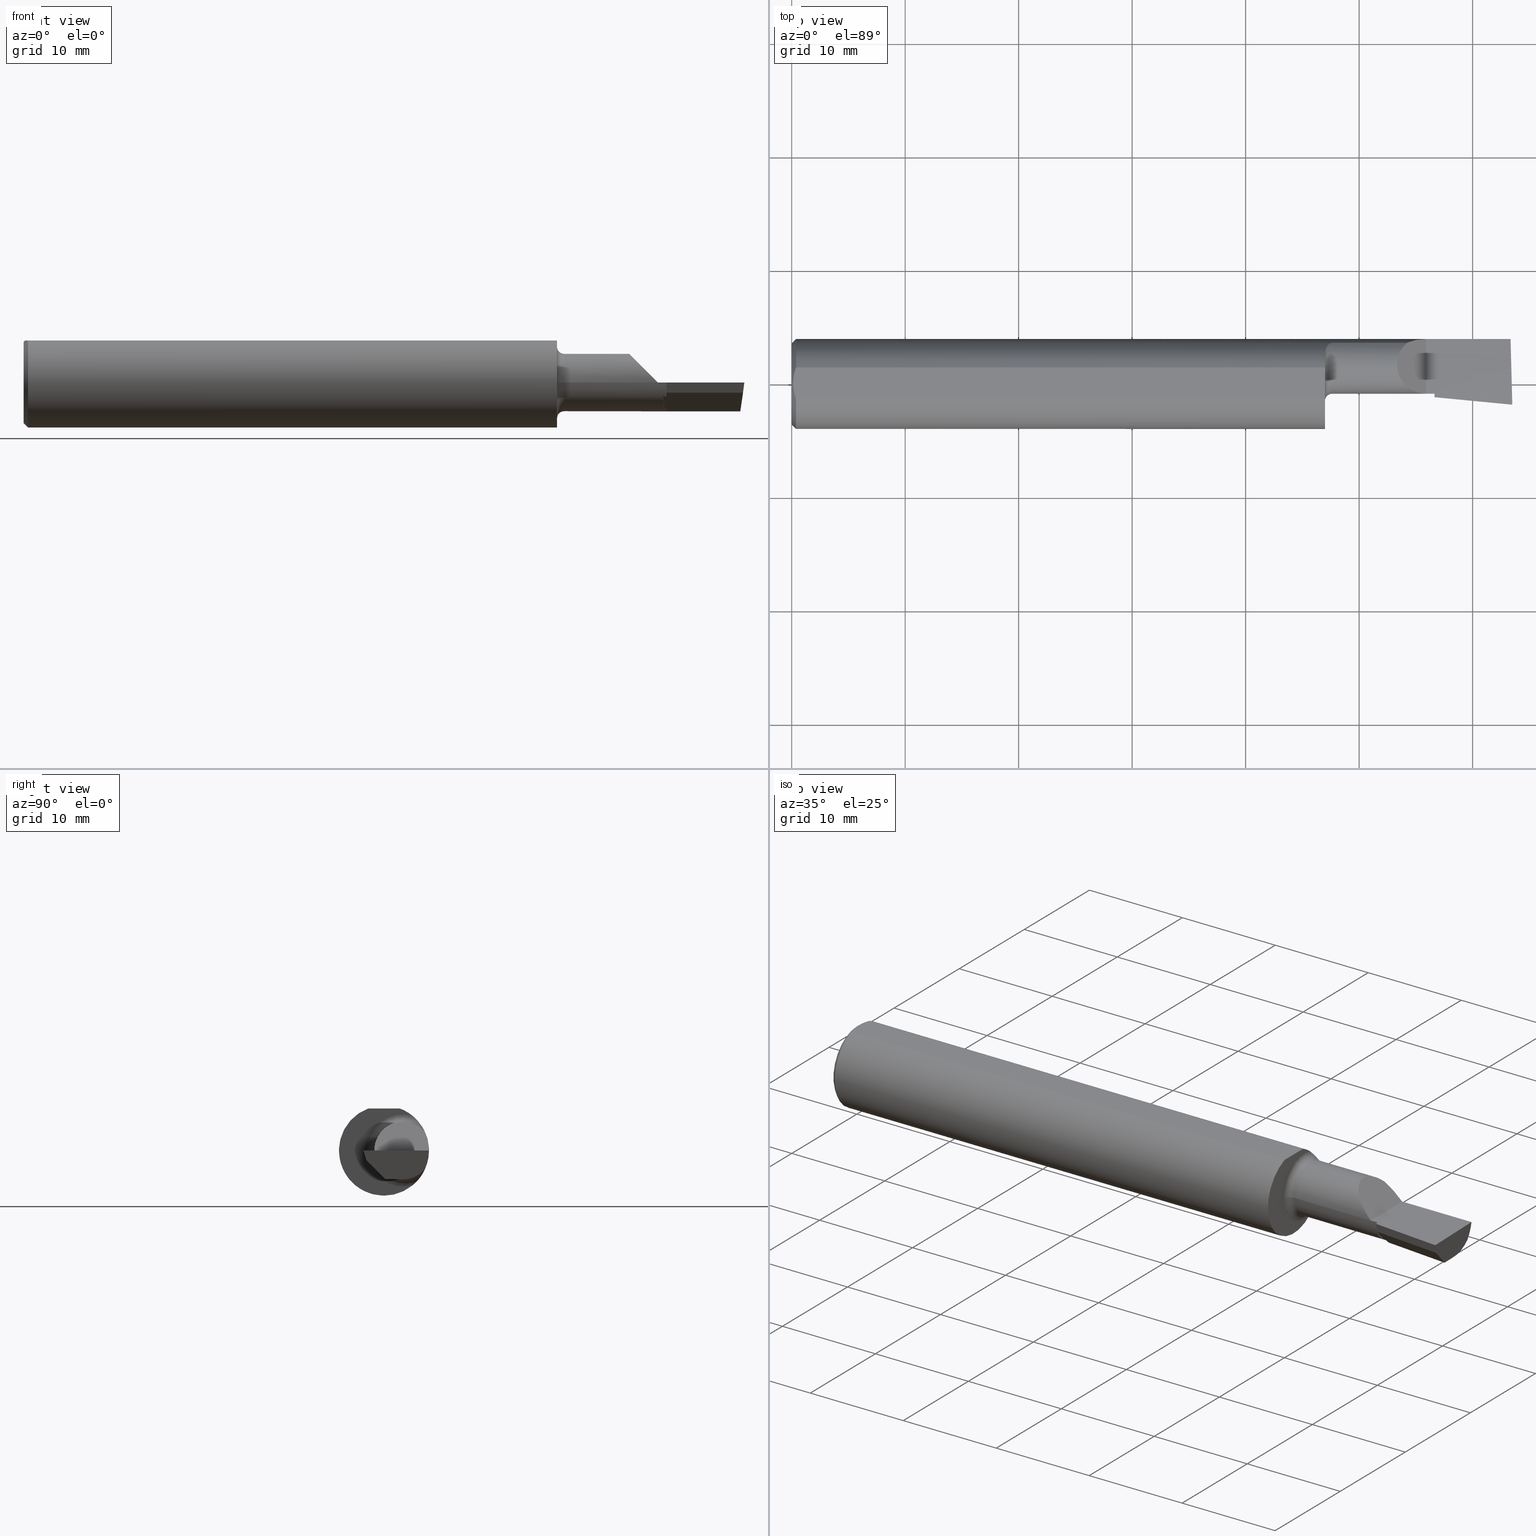
[diagram: canonical four-view strip — front | top / right | iso, engineering-drawing reading convention]
A machine part, canonical four-view strip (front | top / right | iso — engineering-drawing reading convention). The complete STEP part file that produces these views, byte-faithful:
ISO-10303-21;
HEADER;
FILE_DESCRIPTION (( 'STEP AP203' ),
    '1' );
FILE_NAME ('212019-LHB230600.STEP',
    '2024-08-23T18:53:04',
    ( '' ),
    ( '' ),
    'SwSTEP 2.0',
    'SolidWorks 2024',
    '' );
FILE_SCHEMA (( 'CONFIG_CONTROL_DESIGN' ));
ENDSEC;

DATA;
#1 = FACE_OUTER_BOUND ( 'NONE', #676, .T. ) ;
#2 = CARTESIAN_POINT ( 'NONE',  ( 2.229999999999999982, 0.02925656794008578421, -0.09990000000000000269 ) ) ;
#3 = VECTOR ( 'NONE', #644, 39.37007874015748143 ) ;
#4 = CC_DESIGN_SECURITY_CLASSIFICATION ( #257, ( #348 ) ) ;
#5 = ORIENTED_EDGE ( 'NONE', *, *, #390, .F. ) ;
#6 = DIRECTION ( 'NONE',  ( 0.7071067811865390240, 0.000000000000000000, -0.7071067811865560104 ) ) ;
#7 = ORIENTED_EDGE ( 'NONE', *, *, #68, .T. ) ;
#8 = DIRECTION ( 'NONE',  ( -1.031170299700830517E-18, -0.3019700370129915767, 0.9533174165755980978 ) ) ;
#9 = DATE_TIME_ROLE ( 'classification_date' ) ;
#10 = COORDINATED_UNIVERSAL_TIME_OFFSET ( 8, 0, .BEHIND. ) ;
#11 = CARTESIAN_POINT ( 'NONE',  ( 2.229999999999999982, -0.02114125901369682745, -0.04885090559557524192 ) ) ;
#12 = CARTESIAN_POINT ( 'NONE',  ( 1.856590655429605885, 0.1296720675120674460, 0.08713405786343471349 ) ) ;
#13 = CIRCLE ( 'NONE', #44, 0.1560999999999999888 ) ;
#14 = DIRECTION ( 'NONE',  ( 1.000000000000000000, -3.414809992080329023E-18, 0.000000000000000000 ) ) ;
#15 = VECTOR ( 'NONE', #6, 39.37007874015748143 ) ;
#16 = PERSON_AND_ORGANIZATION_ROLE ( 'creator' ) ;
#17 = CARTESIAN_POINT ( 'NONE',  ( 0.000000000000000000, 0.06600000000000000311, 0.000000000000000000 ) ) ;
#18 = CARTESIAN_POINT ( 'NONE',  ( 1.863017092274625641, 0.1374043365808043093, 0.07413505991998713129 ) ) ;
#19 = ORIENTED_EDGE ( 'NONE', *, *, #513, .T. ) ;
#20 = EDGE_CURVE ( 'NONE', #84, #40, #545, .T. ) ;
#21 = PERSON_AND_ORGANIZATION ( #389, #653 ) ;
#22 = CARTESIAN_POINT ( 'NONE',  ( 2.500000000000000000, -0.07190000000000008884, 1.024442997624098707E-16 ) ) ;
#23 = ORIENTED_EDGE ( 'NONE', *, *, #78, .F. ) ;
#24 = CARTESIAN_POINT ( 'NONE',  ( 2.218438857550834253, -0.02249656715429233095, -0.04635048653364754606 ) ) ;
#25 = CC_DESIGN_PERSON_AND_ORGANIZATION_ASSIGNMENT ( #21, #288, ( #348 ) ) ;
#26 = ADVANCED_FACE ( 'NONE', ( #519 ), #71, .T. ) ;
#27 = DATE_AND_TIME ( #577, #463 ) ;
#28 = CARTESIAN_POINT ( 'NONE',  ( 0.000000000000000000, 1.819825143532964315E-17, 0.1410999999999996146 ) ) ;
#29 = CARTESIAN_POINT ( 'NONE',  ( 0.01499999999999999944, -0.05497272050753897882, 0.1461000000000000076 ) ) ;
#30 =( BOUNDED_CURVE ( )  B_SPLINE_CURVE ( 3, ( #88, #235, #350, #517 ),
 .UNSPECIFIED., .F., .T. ) 
 B_SPLINE_CURVE_WITH_KNOTS ( ( 4, 4 ),
 ( 5.641308543522681518, 6.505699533271584123 ),
 .UNSPECIFIED. ) 
 CURVE ( )  GEOMETRIC_REPRESENTATION_ITEM ( )  RATIONAL_B_SPLINE_CURVE ( ( 1.000000000000000000, 0.9386988813357775019, 0.9386988813357775019, 1.000000000000000000 ) ) 
 REPRESENTATION_ITEM ( '' )  );
#31 = ORIENTED_EDGE ( 'NONE', *, *, #168, .F. ) ;
#32 = CARTESIAN_POINT ( 'NONE',  ( 0.005000000000000138882, 0.009391435229055633896, 0.1460999999999999521 ) ) ;
#33 = AXIS2_PLACEMENT_3D ( 'NONE', #638, #46, #694 ) ;
#34 = VERTEX_POINT ( 'NONE', #22 ) ;
#35 = DIRECTION ( 'NONE',  ( 0.9953961983671787417, -0.09584575252022421721, -0.000000000000000000 ) ) ;
#36 = ORIENTED_EDGE ( 'NONE', *, *, #663, .T. ) ;
#37 = FACE_OUTER_BOUND ( 'NONE', #428, .T. ) ;
#38 = DIRECTION ( 'NONE',  ( -0.9953961983671788527, 0.09584575252022338454, -1.011769381795863529E-15 ) ) ;
#39 = CARTESIAN_POINT ( 'NONE',  ( 1.875000000000000000, 0.06600000000000000311, 0.000000000000000000 ) ) ;
#40 = VERTEX_POINT ( 'NONE', #28 ) ;
#41 = FACE_OUTER_BOUND ( 'NONE', #151, .T. ) ;
#42 = VERTEX_POINT ( 'NONE', #247 ) ;
#43 = ADVANCED_FACE ( 'NONE', ( #356 ), #559, .F. ) ;
#44 = AXIS2_PLACEMENT_3D ( 'NONE', #483, #261, #592 ) ;
#45 = LOCAL_TIME ( 11, 53, 4.000000000000000000, #75 ) ;
#46 = DIRECTION ( 'NONE',  ( 0.000000000000000000, -0.000000000000000000, -1.000000000000000000 ) ) ;
#47 = LINE ( 'NONE', #204, #672 ) ;
#48 = VERTEX_POINT ( 'NONE', #283 ) ;
#49 = B_SPLINE_CURVE_WITH_KNOTS ( 'NONE', 3,
 ( #459, #516, #669, #90, #499, #12, #230, #18, #186, #563, #306, #408, #620, #455 ),
 .UNSPECIFIED., .F., .F.,
 ( 4, 2, 2, 2, 2, 2, 4 ),
 ( 0.0001856976868807074985, 0.0006805519038525506895, 0.001175406120824394043, 0.001670260337796237180, 0.001917687446282158748, 0.002041401000525119858, 0.002165114554768081401 ),
 .UNSPECIFIED. ) ;
#50 = CARTESIAN_POINT ( 'NONE',  ( 2.229999999999999982, 0.06599999999999998923, -0.09990000000000000269 ) ) ;
#51 = ORIENTED_EDGE ( 'NONE', *, *, #480, .T. ) ;
#52 = ADVANCED_FACE ( 'NONE', ( #679 ), #232, .T. ) ;
#53 = DIRECTION ( 'NONE',  ( 0.000000000000000000, 0.000000000000000000, 1.000000000000000000 ) ) ;
#54 = EDGE_LOOP ( 'NONE', ( #490, #96, #91, #485, #688, #222, #553, #103 ) ) ;
#55 = AXIS2_PLACEMENT_3D ( 'NONE', #452, #14, #92 ) ;
#56 = LINE ( 'NONE', #547, #133 ) ;
#57 = AXIS2_PLACEMENT_3D ( 'NONE', #651, #388, #333 ) ;
#58 = CARTESIAN_POINT ( 'NONE',  ( 2.052500000000000213, 0.1419939393939392558, -0.06484544066771610882 ) ) ;
#59 = ORIENTED_EDGE ( 'NONE', *, *, #663, .F. ) ;
#60 = DIRECTION ( 'NONE',  ( -3.414809992080329408E-18, -1.000000000000000000, 3.377878149319092424E-34 ) ) ;
#61 = ORIENTED_EDGE ( 'NONE', *, *, #100, .F. ) ;
#62 = EDGE_CURVE ( 'NONE', #684, #271, #629, .T. ) ;
#63 = B_SPLINE_CURVE_WITH_KNOTS ( 'NONE', 3,
 ( #411, #682, #343, #194, #80, #294, #419, #634, #354, #74, #286, #501, #507, #415 ),
 .UNSPECIFIED., .F., .F.,
 ( 4, 2, 2, 2, 2, 2, 4 ),
 ( 1.961289441070630364E-07, 0.0001258819157031970486, 0.0002515677024622870275, 0.0005029392759804661179, 0.001005682423016824841, 0.001508425570053183781, 0.002011168717089542504 ),
 .UNSPECIFIED. ) ;
#64 = DIRECTION ( 'NONE',  ( -0.9927123040216839778, -0.02659410830638028397, 0.1175373763844857478 ) ) ;
#65 = EDGE_LOOP ( 'NONE', ( #466, #647, #59, #443, #99 ) ) ;
#66 = CIRCLE ( 'NONE', #156, 0.09990000000000005820 ) ;
#67 = AXIS2_PLACEMENT_3D ( 'NONE', #217, #696, #597 ) ;
#68 = EDGE_CURVE ( 'NONE', #377, #606, #266, .T. ) ;
#69 = DIRECTION ( 'NONE',  ( 0.1175789623991730648, 0.000000000000000000, 0.9930635365378861490 ) ) ;
#70 = ORIENTED_EDGE ( 'NONE', *, *, #359, .F. ) ;
#71 = CYLINDRICAL_SURFACE ( 'NONE', #293, 0.09990000000000004432 ) ;
#72 = EDGE_CURVE ( 'NONE', #185, #505, #437, .T. ) ;
#73 = FACE_OUTER_BOUND ( 'NONE', #243, .T. ) ;
#74 = CARTESIAN_POINT ( 'NONE',  ( 1.853264033160802349, 0.1222037927935205881, -0.09733121088759384698 ) ) ;
#75 = COORDINATED_UNIVERSAL_TIME_OFFSET ( 8, 0, .BEHIND. ) ;
#76 = DIRECTION ( 'NONE',  ( -1.000000000000000000, 3.414809992080329023E-18, -0.000000000000000000 ) ) ;
#77 = CARTESIAN_POINT ( 'NONE',  ( 0.005000000000000177913, 2.057148876208899831E-17, 0.1460999999999999799 ) ) ;
#78 = EDGE_CURVE ( 'NONE', #531, #608, #296, .T. ) ;
#79 = VECTOR ( 'NONE', #252, 39.37007874015748143 ) ;
#80 = CARTESIAN_POINT ( 'NONE',  ( 1.867803744158916146, 0.1404244429940951777, -0.06818941713933217297 ) ) ;
#81 = APPROVAL_STATUS ( 'not_yet_approved' ) ;
#82 = CARTESIAN_POINT ( 'NONE',  ( 2.218438857550834253, -0.02249656715429233095, -0.04635048653364754606 ) ) ;
#83 = DIRECTION ( 'NONE',  ( -3.414809992080329023E-18, -1.000000000000000000, 0.000000000000000000 ) ) ;
#84 = VERTEX_POINT ( 'NONE', #228 ) ;
#85 = CARTESIAN_POINT ( 'NONE',  ( 2.135154559332283597, 0.1419939393939393113, 0.06484544066771606718 ) ) ;
#86 = PERSON_AND_ORGANIZATION ( #389, #653 ) ;
#87 = CARTESIAN_POINT ( 'NONE',  ( 2.490723658160492793, -0.02712709695662827297, -0.06821696633277901656 ) ) ;
#88 = CARTESIAN_POINT ( 'NONE',  ( 2.486592206520481518, 0.1419939393939392558, -0.06484544066771610882 ) ) ;
#89 = CARTESIAN_POINT ( 'NONE',  ( 2.226335579060370495, -0.02160487824124661740, -0.04802389199779035639 ) ) ;
#90 = CARTESIAN_POINT ( 'NONE',  ( 1.852040506864490288, 0.1180407066556266177, 0.1023492120876700051 ) ) ;
#91 = ORIENTED_EDGE ( 'NONE', *, *, #375, .F. ) ;
#92 = DIRECTION ( 'NONE',  ( 3.414809992080329023E-18, 1.000000000000000000, 0.000000000000000000 ) ) ;
#93 = AXIS2_PLACEMENT_3D ( 'NONE', #242, #398, #465 ) ;
#94 = CC_DESIGN_DATE_AND_TIME_ASSIGNMENT ( #401, #9, ( #257 ) ) ;
#95 = DIRECTION ( 'NONE',  ( 0.06836202603457079696, 0.7099667855717586296, 0.7009092642998473455 ) ) ;
#96 = ORIENTED_EDGE ( 'NONE', *, *, #124, .T. ) ;
#97 = EDGE_CURVE ( 'NONE', #40, #84, #566, .T. ) ;
#98 = DIRECTION ( 'NONE',  ( -1.000000000000000000, -0.000000000000000000, -0.000000000000000000 ) ) ;
#99 = ORIENTED_EDGE ( 'NONE', *, *, #370, .F. ) ;
#100 = EDGE_CURVE ( 'NONE', #472, #34, #450, .T. ) ;
#101 = AXIS2_PLACEMENT_3D ( 'NONE', #372, #593, #427 ) ;
#102 = CARTESIAN_POINT ( 'NONE',  ( 2.222310128493429904, 0.01770811878936147735, -0.08745229676307869626 ) ) ;
#103 = ORIENTED_EDGE ( 'NONE', *, *, #410, .F. ) ;
#104 = PRODUCT_RELATED_PRODUCT_CATEGORY ( 'detail', '', ( #327 ) ) ;
#105 = CARTESIAN_POINT ( 'NONE',  ( 2.200000000000000178, -0.03390000000000021468, 9.797174393178826150E-17 ) ) ;
#106 = ORIENTED_EDGE ( 'NONE', *, *, #378, .F. ) ;
#107 = CARTESIAN_POINT ( 'NONE',  ( 2.229999999999999982, 0.06599999999999998923, 0.000000000000000000 ) ) ;
#108 = ORIENTED_EDGE ( 'NONE', *, *, #199, .T. ) ;
#109 = PRODUCT_DEFINITION_SHAPE ( 'NONE', 'NONE',  #284 ) ;
#110 = CIRCLE ( 'NONE', #518, 0.1249000000000000665 ) ;
#111 = DIRECTION ( 'NONE',  ( 0.09140971883575742252, 0.9493262270931228652, 0.3007057995042736742 ) ) ;
#112 = ORIENTED_EDGE ( 'NONE', *, *, #378, .T. ) ;
#113 = LINE ( 'NONE', #607, #552 ) ;
#114 = ADVANCED_FACE ( 'NONE', ( #458 ), #668, .T. ) ;
#115 = DIRECTION ( 'NONE',  ( -1.000000000000000000, 3.414809992080329023E-18, -0.000000000000000000 ) ) ;
#116 = ORIENTED_EDGE ( 'NONE', *, *, #464, .F. ) ;
#117 = ORIENTED_EDGE ( 'NONE', *, *, #138, .T. ) ;
#118 = CARTESIAN_POINT ( 'NONE',  ( 0.01499999999999999944, -0.05497272050753897882, 0.1461000000000000076 ) ) ;
#119 = AXIS2_PLACEMENT_3D ( 'NONE', #467, #564, #662 ) ;
#120 = EDGE_CURVE ( 'NONE', #159, #596, #397, .T. ) ;
#121 = CALENDAR_DATE ( 2024, 23, 8 ) ;
#122 = CARTESIAN_POINT ( 'NONE',  ( 0.000000000000000000, 0.000000000000000000, 0.000000000000000000 ) ) ;
#123 = DIRECTION ( 'NONE',  ( 0.000000000000000000, -1.000000000000000000, 0.000000000000000000 ) ) ;
#124 = EDGE_CURVE ( 'NONE', #159, #472, #625, .T. ) ;
#125 = COORDINATED_UNIVERSAL_TIME_OFFSET ( 8, 0, .BEHIND. ) ;
#126 = DIRECTION ( 'NONE',  ( -0.9953961983671787417, 0.09584575252022423109, -0.000000000000000000 ) ) ;
#127 = LINE ( 'NONE', #50, #448 ) ;
#128 = CARTESIAN_POINT ( 'NONE',  ( 2.052500000000000213, 0.1419939393939392558, 0.06484544066771610882 ) ) ;
#129 = DIRECTION ( 'NONE',  ( 0.000000000000000000, 0.000000000000000000, 1.000000000000000000 ) ) ;
#130 = PLANE ( 'NONE',  #146 ) ;
#131 = ORIENTED_EDGE ( 'NONE', *, *, #304, .F. ) ;
#132 = CIRCLE ( 'NONE', #491, 0.1560999999999999888 ) ;
#133 = VECTOR ( 'NONE', #435, 39.37007874015748143 ) ;
#134 = DIRECTION ( 'NONE',  ( 1.000000000000000000, -3.414809992080329023E-18, 0.000000000000000000 ) ) ;
#135 = CARTESIAN_POINT ( 'NONE',  ( 0.000000000000000000, 0.000000000000000000, 0.000000000000000000 ) ) ;
#136 = CARTESIAN_POINT ( 'NONE',  ( 2.493892030279779792, 0.1560999999999997945, 6.888552856243478599E-17 ) ) ;
#137 = CARTESIAN_POINT ( 'NONE',  ( 2.222310128493429904, 0.01770811878936147735, -0.08745229676307869626 ) ) ;
#138 = EDGE_CURVE ( 'NONE', #169, #684, #13, .T. ) ;
#139 = CARTESIAN_POINT ( 'NONE',  ( 2.504767759937919891, -0.2498722748537978433, 6.782458027410943008E-17 ) ) ;
#140 = ORIENTED_EDGE ( 'NONE', *, *, #410, .T. ) ;
#141 = CARTESIAN_POINT ( 'NONE',  ( 2.217369785204464261, -0.03359930797873920960, -0.03499999999999993394 ) ) ;
#142 = CARTESIAN_POINT ( 'NONE',  ( 2.486122571438858397, 0.004594769314331973060, -0.09990000000000000269 ) ) ;
#143 = EDGE_CURVE ( 'NONE', #187, #167, #362, .T. ) ;
#144 = DIRECTION ( 'NONE',  ( -1.000000000000000000, 3.414809992080329023E-18, -0.000000000000000000 ) ) ;
#145 = LINE ( 'NONE', #139, #598 ) ;
#146 = AXIS2_PLACEMENT_3D ( 'NONE', #520, #504, #560 ) ;
#147 = CARTESIAN_POINT ( 'NONE',  ( 2.217369785204464261, -0.03359930797873920960, -0.03499999999999993394 ) ) ;
#148 = ORIENTED_EDGE ( 'NONE', *, *, #605, .T. ) ;
#149 = ADVANCED_FACE ( 'NONE', ( #416 ), #522, .F. ) ;
#150 = LINE ( 'NONE', #526, #79 ) ;
#151 = EDGE_LOOP ( 'NONE', ( #600, #393, #475 ) ) ;
#152 = CARTESIAN_POINT ( 'NONE',  ( 0.01499999999999999424, 0.000000000000000000, 0.000000000000000000 ) ) ;
#153 = CC_DESIGN_PERSON_AND_ORGANIZATION_ASSIGNMENT ( #86, #16, ( #284 ) ) ;
#154 = ORIENTED_EDGE ( 'NONE', *, *, #155, .T. ) ;
#155 = EDGE_CURVE ( 'NONE', #48, #594, #621, .T. ) ;
#156 = AXIS2_PLACEMENT_3D ( 'NONE', #376, #646, #160 ) ;
#157 = CIRCLE ( 'NONE', #423, 0.09990000000000000269 ) ;
#158 = PLANE ( 'NONE',  #101 ) ;
#159 = VERTEX_POINT ( 'NONE', #142 ) ;
#160 = DIRECTION ( 'NONE',  ( 0.000000000000000000, -1.000000000000000000, 0.000000000000000000 ) ) ;
#161 = VERTEX_POINT ( 'NONE', #628 ) ;
#162 = PLANE ( 'NONE',  #329 ) ;
#163 = VECTOR ( 'NONE', #8, 39.37007874015748854 ) ;
#164 = FACE_OUTER_BOUND ( 'NONE', #320, .T. ) ;
#165 = AXIS2_PLACEMENT_3D ( 'NONE', #549, #111, #602 ) ;
#166 = CARTESIAN_POINT ( 'NONE',  ( 2.229999999999999982, 0.06599999999999998923, -0.09990000000000000269 ) ) ;
#167 = VERTEX_POINT ( 'NONE', #363 ) ;
#168 = EDGE_CURVE ( 'NONE', #40, #310, #399, .T. ) ;
#169 = VERTEX_POINT ( 'NONE', #521 ) ;
#170 = B_SPLINE_CURVE_WITH_KNOTS ( 'NONE', 3,
 ( #576, #32, #528, #540, #689, #340 ),
 .UNSPECIFIED., .F., .F.,
 ( 4, 2, 4 ),
 ( 0.002884734412378666280, 0.003593604306281239329, 0.004302474200183812811 ),
 .UNSPECIFIED. ) ;
#171 = EDGE_LOOP ( 'NONE', ( #19, #7, #697, #209, #117, #446, #503, #116, #36, #588, #535, #482, #365 ) ) ;
#172 = ADVANCED_FACE ( 'NONE', ( #246 ), #631, .F. ) ;
#173 = PERSON_AND_ORGANIZATION ( #389, #653 ) ;
#174 = EDGE_LOOP ( 'NONE', ( #112, #511, #334, #367, #369 ) ) ;
#175 = VECTOR ( 'NONE', #237, 39.37007874015748854 ) ;
#176 = CARTESIAN_POINT ( 'NONE',  ( 0.009356849677356088302, -0.03706298561014170767, 0.1461000000000000354 ) ) ;
#177 = APPROVAL_DATE_TIME ( #562, #274 ) ;
#178 = DIRECTION ( 'NONE',  ( -1.000000000000000000, -0.000000000000000000, -0.000000000000000000 ) ) ;
#179 = CARTESIAN_POINT ( 'NONE',  ( 0.005910707775482461519, -0.01866948012536269463, 0.1460999999999999799 ) ) ;
#180 = CALENDAR_DATE ( 2024, 23, 8 ) ;
#181 = CARTESIAN_POINT ( 'NONE',  ( 2.222481604588531390, -0.02205667813890352727, -0.04719036267523941258 ) ) ;
#182 = CARTESIAN_POINT ( 'NONE',  ( 0.005000000000000139749, -0.009384304010803560733, 0.1460999999999999799 ) ) ;
#183 = DIRECTION ( 'NONE',  ( 0.7071067811865390240, 8.659560562355036396E-17, 0.7071067811865560104 ) ) ;
#184 = DATE_AND_TIME ( #227, #440 ) ;
#185 = VERTEX_POINT ( 'NONE', #470 ) ;
#186 = CARTESIAN_POINT ( 'NONE',  ( 1.864666516289593456, 0.1387430930441306276, 0.07158177069671561865 ) ) ;
#187 = VERTEX_POINT ( 'NONE', #581 ) ;
#188 = AXIS2_PLACEMENT_3D ( 'NONE', #241, #352, #660 ) ;
#189 = CARTESIAN_POINT ( 'NONE',  ( 2.200000000000000178, 0.1560999999999997667, 9.797174393178826150E-17 ) ) ;
#190 = APPLICATION_PROTOCOL_DEFINITION ( 'international standard', 'config_control_design', 1994, #616 ) ;
#191 = DIRECTION ( 'NONE',  ( -3.414809992080329023E-18, -1.000000000000000000, 0.000000000000000000 ) ) ;
#192 = CARTESIAN_POINT ( 'NONE',  ( 1.875000000000000000, 0.1419939393939390615, -0.06484544066771637250 ) ) ;
#193 = ADVANCED_FACE ( 'NONE', ( #404 ), #486, .T. ) ;
#194 = CARTESIAN_POINT ( 'NONE',  ( 1.868987086440955903, 0.1409404987250978125, -0.06711069163632751855 ) ) ;
#195 = DIRECTION ( 'NONE',  ( -1.000000000000000000, -0.000000000000000000, -0.000000000000000000 ) ) ;
#196 = CARTESIAN_POINT ( 'NONE',  ( 2.516991541038281710, -0.07353609931398560895, 6.661542242413441755E-17 ) ) ;
#197 = ORIENTED_EDGE ( 'NONE', *, *, #496, .T. ) ;
#198 = CARTESIAN_POINT ( 'NONE',  ( 0.01499999999999999424, 1.911673653469018068E-17, 0.1560999999999999888 ) ) ;
#199 = EDGE_CURVE ( 'NONE', #34, #377, #145, .T. ) ;
#200 = DIRECTION ( 'NONE',  ( 0.000000000000000000, -1.000000000000000000, 0.000000000000000000 ) ) ;
#201 = ORIENTED_EDGE ( 'NONE', *, *, #677, .F. ) ;
#202 = AXIS2_PLACEMENT_3D ( 'NONE', #360, #38, #506 ) ;
#203 = AXIS2_PLACEMENT_3D ( 'NONE', #462, #468, #407 ) ;
#204 = CARTESIAN_POINT ( 'NONE',  ( 2.229999999999999982, -0.06272190053731417636, -0.006732936968033727092 ) ) ;
#205 = ORIENTED_EDGE ( 'NONE', *, *, #97, .T. ) ;
#206 = CARTESIAN_POINT ( 'NONE',  ( 2.217369785204464261, -0.03359930797873920960, -0.03499999999999993394 ) ) ;
#207 = ORIENTED_EDGE ( 'NONE', *, *, #72, .T. ) ;
#208 = FACE_OUTER_BOUND ( 'NONE', #265, .T. ) ;
#209 = ORIENTED_EDGE ( 'NONE', *, *, #250, .T. ) ;
#210 = AXIS2_PLACEMENT_3D ( 'NONE', #575, #285, #83 ) ;
#211 = DIRECTION ( 'NONE',  ( -1.000000000000000000, -0.000000000000000000, -0.000000000000000000 ) ) ;
#212 = ORIENTED_EDGE ( 'NONE', *, *, #370, .T. ) ;
#213 = LENGTH_MEASURE_WITH_UNIT ( LENGTH_MEASURE( 0.02539999999999999897 ), #654 );
#214 = ORIENTED_EDGE ( 'NONE', *, *, #414, .T. ) ;
#215 = EDGE_CURVE ( 'NONE', #384, #185, #322, .T. ) ;
#216 =( BOUNDED_CURVE ( )  B_SPLINE_CURVE ( 3, ( #309, #258, #311, #102 ),
 .UNSPECIFIED., .F., .F. ) 
 B_SPLINE_CURVE_WITH_KNOTS ( ( 4, 4 ),
 ( 3.409630382672708571, 3.428873477936119851 ),
 .UNSPECIFIED. ) 
 CURVE ( )  GEOMETRIC_REPRESENTATION_ITEM ( )  RATIONAL_B_SPLINE_CURVE ( ( 1.000000000000000000, 0.9999691421784444589, 0.9999691421784444589, 1.000000000000000000 ) ) 
 REPRESENTATION_ITEM ( '' )  );
#217 = CARTESIAN_POINT ( 'NONE',  ( 0.000000000000000000, 0.000000000000000000, 0.000000000000000000 ) ) ;
#218 = ORIENTED_EDGE ( 'NONE', *, *, #20, .T. ) ;
#219 = CIRCLE ( 'NONE', #476, 0.1560999999999999888 ) ;
#220 =( GEOMETRIC_REPRESENTATION_CONTEXT ( 3 ) GLOBAL_UNCERTAINTY_ASSIGNED_CONTEXT ( ( #279 ) ) GLOBAL_UNIT_ASSIGNED_CONTEXT ( ( #599, #396, #673 ) ) REPRESENTATION_CONTEXT ( 'NONE', 'WORKASPACE' ) );
#221 = LINE ( 'NONE', #332, #15 ) ;
#222 = ORIENTED_EDGE ( 'NONE', *, *, #480, .F. ) ;
#223 = LINE ( 'NONE', #58, #292 ) ;
#224 = ADVANCED_FACE ( 'NONE', ( #37 ), #678, .F. ) ;
#225 = PERSON_AND_ORGANIZATION ( #389, #653 ) ;
#226 = EDGE_CURVE ( 'NONE', #42, #238, #622, .T. ) ;
#227 = CALENDAR_DATE ( 2024, 23, 8 ) ;
#228 = CARTESIAN_POINT ( 'NONE',  ( 0.000000000000000000, 0.000000000000000000, -0.1410999999999996146 ) ) ;
#229 = VECTOR ( 'NONE', #578, 39.37007874015748143 ) ;
#230 = CARTESIAN_POINT ( 'NONE',  ( 1.858665904659250856, 0.1330436853938329056, 0.08186319721956687723 ) ) ;
#231 = DIRECTION ( 'NONE',  ( 0.000000000000000000, 1.000000000000000000, -1.656870447394628111E-16 ) ) ;
#232 = CYLINDRICAL_SURFACE ( 'NONE', #652, 0.1560999999999999888 ) ;
#233 = CARTESIAN_POINT ( 'NONE',  ( 2.484477565782318376, 0.06599999999999998923, -0.09990000000000000269 ) ) ;
#234 = ORIENTED_EDGE ( 'NONE', *, *, #260, .T. ) ;
#235 = CARTESIAN_POINT ( 'NONE',  ( 2.484432346890067311, 0.1227037540429562340, -0.08745207517224946880 ) ) ;
#236 = DIRECTION ( 'NONE',  ( 0.000000000000000000, 0.000000000000000000, 1.000000000000000000 ) ) ;
#237 = DIRECTION ( 'NONE',  ( -2.399084424743908463E-18, -0.7025528302622680021, 0.7116315905652844664 ) ) ;
#238 = VERTEX_POINT ( 'NONE', #85 ) ;
#239 = CARTESIAN_POINT ( 'NONE',  ( 2.135154559332283597, 0.1419939393939393113, 0.06484544066771606718 ) ) ;
#240 = APPROVAL_ROLE ( '' ) ;
#241 = CARTESIAN_POINT ( 'NONE',  ( 0.000000000000000000, 0.06600000000000000311, 0.000000000000000000 ) ) ;
#242 = CARTESIAN_POINT ( 'NONE',  ( 1.875000000000000000, 0.06599999999999998923, 0.000000000000000000 ) ) ;
#243 = EDGE_LOOP ( 'NONE', ( #434, #106, #335, #642 ) ) ;
#244 = VECTOR ( 'NONE', #134, 39.37007874015748143 ) ;
#245 = CC_DESIGN_APPROVAL ( #274, ( #284 ) ) ;
#246 = FACE_OUTER_BOUND ( 'NONE', #65, .T. ) ;
#247 = CARTESIAN_POINT ( 'NONE',  ( 1.875000000000000000, 0.1419939393939390060, 0.06484544066771646964 ) ) ;
#248 = ADVANCED_BREP_SHAPE_REPRESENTATION ( '212019-LHB230600', ( #610, #532 ), #220 ) ;
#249 = CARTESIAN_POINT ( 'NONE',  ( 0.01499999999999999424, 0.05497272050753903433, 0.1460999999999999521 ) ) ;
#250 = EDGE_CURVE ( 'NONE', #302, #169, #63, .T. ) ;
#251 = ORIENTED_EDGE ( 'NONE', *, *, #395, .F. ) ;
#252 = DIRECTION ( 'NONE',  ( -1.000000000000000000, -0.000000000000000000, -0.000000000000000000 ) ) ;
#253 = ORIENTED_EDGE ( 'NONE', *, *, #215, .T. ) ;
#254 = VECTOR ( 'NONE', #471, 39.37007874015748143 ) ;
#255 = CC_DESIGN_DATE_AND_TIME_ASSIGNMENT ( #27, #280, ( #284 ) ) ;
#256 = VECTOR ( 'NONE', #481, 39.37007874015748854 ) ;
#257 = SECURITY_CLASSIFICATION ( '', '', #453 ) ;
#258 = CARTESIAN_POINT ( 'NONE',  ( 2.227523279994489069, 0.01658920591323151741, -0.08682738081222335369 ) ) ;
#259 = EDGE_LOOP ( 'NONE', ( #650, #571, #670, #488 ) ) ;
#260 = EDGE_CURVE ( 'NONE', #606, #305, #30, .T. ) ;
#261 = DIRECTION ( 'NONE',  ( -1.000000000000000000, 3.414809992080329023E-18, -0.000000000000000000 ) ) ;
#262 = CARTESIAN_POINT ( 'NONE',  ( 2.229999999999999982, 0.01603431065556222557, -0.08650687769382926773 ) ) ;
#263 = ORIENTED_EDGE ( 'NONE', *, *, #390, .T. ) ;
#264 = DIRECTION ( 'NONE',  ( -0.000000000000000000, 1.000000000000000000, -0.000000000000000000 ) ) ;
#265 = EDGE_LOOP ( 'NONE', ( #268, #409, #373, #70 ) ) ;
#266 =( BOUNDED_CURVE ( )  B_SPLINE_CURVE ( 3, ( #136, #454, #569, #612 ),
 .UNSPECIFIED., .F., .F. ) 
 B_SPLINE_CURVE_WITH_KNOTS ( ( 4, 4 ),
 ( 4.934903206476686677, 5.363296268785054721 ),
 .UNSPECIFIED. ) 
 CURVE ( )  GEOMETRIC_REPRESENTATION_ITEM ( )  RATIONAL_B_SPLINE_CURVE ( ( 1.000000000000000000, 0.9847649979006014576, 0.9847649979006014576, 1.000000000000000000 ) ) 
 REPRESENTATION_ITEM ( '' )  );
#267 = LINE ( 'NONE', #656, #382 ) ;
#268 = ORIENTED_EDGE ( 'NONE', *, *, #432, .F. ) ;
#269 = EDGE_CURVE ( 'NONE', #238, #608, #561, .T. ) ;
#270 = CARTESIAN_POINT ( 'NONE',  ( 1.850000000000000311, -0.05497272050753900657, 0.1461000000000000076 ) ) ;
#271 = VERTEX_POINT ( 'NONE', #512 ) ;
#272 = EDGE_CURVE ( 'NONE', #310, #339, #170, .T. ) ;
#273 = ORIENTED_EDGE ( 'NONE', *, *, #260, .F. ) ;
#274 = APPROVAL ( #392, 'UNSPECIFIED' ) ;
#275 = AXIS2_PLACEMENT_3D ( 'NONE', #641, #323, #556 ) ;
#276 = ADVANCED_FACE ( 'NONE', ( #73 ), #422, .F. ) ;
#277 = DIRECTION ( 'NONE',  ( 0.000000000000000000, -1.000000000000000000, 0.000000000000000000 ) ) ;
#278 = ORIENTED_EDGE ( 'NONE', *, *, #414, .F. ) ;
#279 = UNCERTAINTY_MEASURE_WITH_UNIT (LENGTH_MEASURE( 1.000000000000000082E-05 ), #599, 'distance_accuracy_value', 'NONE');
#280 = DATE_TIME_ROLE ( 'creation_date' ) ;
#281 = ORIENTED_EDGE ( 'NONE', *, *, #477, .F. ) ;
#282 = PERSON_AND_ORGANIZATION ( #389, #653 ) ;
#283 = CARTESIAN_POINT ( 'NONE',  ( 2.229999999999999982, -0.03481545933993181879, -0.03499999999999993394 ) ) ;
#284 = PRODUCT_DEFINITION ( 'UNKNOWN', '', #348, #445 ) ;
#285 = DIRECTION ( 'NONE',  ( -1.000000000000000000, 3.414809992080329023E-18, -0.000000000000000000 ) ) ;
#286 = CARTESIAN_POINT ( 'NONE',  ( 1.852063943834881599, 0.1181307192064760814, -0.1022448908112570387 ) ) ;
#287 = CLOSED_SHELL ( 'NONE', ( #26, #447, #536, #619, #601, #193, #52, #172, #43, #500, #276, #336, #224, #114, #525, #648, #149, #400, #572 ) ) ;
#288 = PERSON_AND_ORGANIZATION_ROLE ( 'design_supplier' ) ;
#289 = CARTESIAN_POINT ( 'NONE',  ( 0.000000000000000000, 0.000000000000000000, 0.000000000000000000 ) ) ;
#290 = CIRCLE ( 'NONE', #543, 0.09990000000000000269 ) ;
#291 = CARTESIAN_POINT ( 'NONE',  ( 2.229999999999999982, -0.03390000000000001346, 0.000000000000000000 ) ) ;
#292 = VECTOR ( 'NONE', #484, 39.37007874015748143 ) ;
#293 = AXIS2_PLACEMENT_3D ( 'NONE', #17, #76, #191 ) ;
#294 = CARTESIAN_POINT ( 'NONE',  ( 1.864650979716347967, 0.1387334617349063881, -0.07160083655282396820 ) ) ;
#295 = CALENDAR_DATE ( 2024, 23, 8 ) ;
#296 = LINE ( 'NONE', #509, #328 ) ;
#297 = LINE ( 'NONE', #353, #307 ) ;
#298 = VERTEX_POINT ( 'NONE', #291 ) ;
#299 = CARTESIAN_POINT ( 'NONE',  ( 2.229999999999999982, -0.04681381601920082958, 0.002878732955684692139 ) ) ;
#300 = COORDINATED_UNIVERSAL_TIME_OFFSET ( 8, 0, .BEHIND. ) ;
#301 = DIRECTION ( 'NONE',  ( -0.000000000000000000, 1.000000000000000000, -0.000000000000000000 ) ) ;
#302 = VERTEX_POINT ( 'NONE', #192 ) ;
#303 = CARTESIAN_POINT ( 'NONE',  ( 2.220647783968257016, 0.0004440108114462912358, -0.07791891362122961573 ) ) ;
#304 = EDGE_CURVE ( 'NONE', #305, #159, #297, .T. ) ;
#305 = VERTEX_POINT ( 'NONE', #233 ) ;
#306 = CARTESIAN_POINT ( 'NONE',  ( 1.868988484139260109, 0.1409410548628156068, 0.06710952210203094404 ) ) ;
#307 = VECTOR ( 'NONE', #403, 39.37007874015748854 ) ;
#308 = DIRECTION ( 'NONE',  ( 0.000000000000000000, -1.656870447394628111E-16, -1.000000000000000000 ) ) ;
#309 = CARTESIAN_POINT ( 'NONE',  ( 2.229999999999999982, 0.01603431065556222557, -0.08650687769382926773 ) ) ;
#310 = VERTEX_POINT ( 'NONE', #357 ) ;
#311 = CARTESIAN_POINT ( 'NONE',  ( 2.224959910392296791, 0.01714715917505345300, -0.08714253022679756266 ) ) ;
#312 = ORIENTED_EDGE ( 'NONE', *, *, #473, .T. ) ;
#313 = DIMENSIONAL_EXPONENTS ( 1.000000000000000000, 0.000000000000000000, 0.000000000000000000, 0.000000000000000000, 0.000000000000000000, 0.000000000000000000, 0.000000000000000000 ) ;
#314 = CARTESIAN_POINT ( 'NONE',  ( 2.229999999999999982, -0.02114125901369682745, -0.04885090559557524192 ) ) ;
#315 = ORIENTED_EDGE ( 'NONE', *, *, #168, .T. ) ;
#316 = AXIS2_PLACEMENT_3D ( 'NONE', #683, #587, #534 ) ;
#317 = CC_DESIGN_APPROVAL ( #374, ( #348 ) ) ;
#318 = EDGE_CURVE ( 'NONE', #271, #161, #132, .T. ) ;
#319 = DIRECTION ( 'NONE',  ( -1.000000000000000000, 3.414809992080329023E-18, -0.000000000000000000 ) ) ;
#320 = EDGE_LOOP ( 'NONE', ( #627, #421, #281, #637 ) ) ;
#321 = EDGE_CURVE ( 'NONE', #505, #48, #630, .T. ) ;
#322 =( BOUNDED_CURVE ( )  B_SPLINE_CURVE ( 3, ( #573, #303, #666, #24 ),
 .UNSPECIFIED., .F., .F. ) 
 B_SPLINE_CURVE_WITH_KNOTS ( ( 4, 4 ),
 ( 5.216926016506045372, 5.800715090403770091 ),
 .UNSPECIFIED. ) 
 CURVE ( )  GEOMETRIC_REPRESENTATION_ITEM ( )  RATIONAL_B_SPLINE_CURVE ( ( 1.000000000000000000, 0.9718002727220685921, 0.9718002727220685921, 1.000000000000000000 ) ) 
 REPRESENTATION_ITEM ( '' )  );
#323 = DIRECTION ( 'NONE',  ( 1.000000000000000000, 0.000000000000000000, 0.000000000000000000 ) ) ;
#324 = ORIENTED_EDGE ( 'NONE', *, *, #97, .F. ) ;
#325 = PLANE ( 'NONE',  #165 ) ;
#326 = EDGE_LOOP ( 'NONE', ( #324, #315, #342, #527, #658 ) ) ;
#327 = PRODUCT ( '212019-LHB230600', '212019-LHB230600', '', ( #497 ) ) ;
#328 = VECTOR ( 'NONE', #301, 39.37007874015748143 ) ;
#329 = AXIS2_PLACEMENT_3D ( 'NONE', #493, #64, #69 ) ;
#330 = FACE_OUTER_BOUND ( 'NONE', #645, .T. ) ;
#331 = EDGE_LOOP ( 'NONE', ( #31, #430, #603, #197, #212 ) ) ;
#332 = CARTESIAN_POINT ( 'NONE',  ( 0.01499999999999999424, 0.000000000000000000, -0.1560999999999999888 ) ) ;
#333 = DIRECTION ( 'NONE',  ( 3.414809992080329023E-18, 1.000000000000000000, 0.000000000000000000 ) ) ;
#334 = ORIENTED_EDGE ( 'NONE', *, *, #318, .F. ) ;
#335 = ORIENTED_EDGE ( 'NONE', *, *, #250, .F. ) ;
#336 = ADVANCED_FACE ( 'NONE', ( #661 ), #130, .F. ) ;
#337 = EDGE_LOOP ( 'NONE', ( #349, #263, #418, #201, #234, #312, #214, #580, #253, #207, #148 ) ) ;
#338 = PERSON_AND_ORGANIZATION ( #389, #653 ) ;
#339 = VERTEX_POINT ( 'NONE', #249 ) ;
#340 = CARTESIAN_POINT ( 'NONE',  ( 0.01499999999999999424, 0.05497272050753903433, 0.1460999999999999521 ) ) ;
#341 = APPROVAL_DATE_TIME ( #449, #374 ) ;
#342 = ORIENTED_EDGE ( 'NONE', *, *, #272, .T. ) ;
#343 = CARTESIAN_POINT ( 'NONE',  ( 1.871725699135996068, 0.1417275062431943844, -0.06543227863119877030 ) ) ;
#344 = CIRCLE ( 'NONE', #623, 0.1560999999999999888 ) ;
#345 = PERSON_AND_ORGANIZATION ( #389, #653 ) ;
#346 = DIRECTION ( 'NONE',  ( 0.1199690778467073504, -0.3102690083707254076, 0.9430485474275740465 ) ) ;
#347 = CARTESIAN_POINT ( 'NONE',  ( 1.850000000000000311, 0.06599999999999998923, 0.000000000000000000 ) ) ;
#348 = PRODUCT_DEFINITION_FORMATION_WITH_SPECIFIED_SOURCE ( 'ANY', '', #327, .NOT_KNOWN. ) ;
#349 = ORIENTED_EDGE ( 'NONE', *, *, #492, .F. ) ;
#350 = CARTESIAN_POINT ( 'NONE',  ( 2.483681434898939333, 0.09571819601686547274, -0.09990000000000004432 ) ) ;
#351 = APPROVAL_STATUS ( 'not_yet_approved' ) ;
#352 = DIRECTION ( 'NONE',  ( -1.000000000000000000, 3.414809992080329023E-18, -0.000000000000000000 ) ) ;
#353 = CARTESIAN_POINT ( 'NONE',  ( 2.484488697759745790, 0.06558446243682164445, -0.09990000000000000269 ) ) ;
#354 = CARTESIAN_POINT ( 'NONE',  ( 1.856590010709524785, 0.1296703571699485136, -0.08713627291424022592 ) ) ;
#355 = COORDINATED_UNIVERSAL_TIME_OFFSET ( 8, 0, .BEHIND. ) ;
#356 = FACE_OUTER_BOUND ( 'NONE', #426, .T. ) ;
#357 = CARTESIAN_POINT ( 'NONE',  ( 0.005000000000000177913, 2.057148876208899831E-17, 0.1460999999999999799 ) ) ;
#358 = CARTESIAN_POINT ( 'NONE',  ( 2.500000000000000000, 0.2061000000000000332, 0.1460999999999999521 ) ) ;
#359 = EDGE_CURVE ( 'NONE', #161, #42, #49, .T. ) ;
#360 = CARTESIAN_POINT ( 'NONE',  ( 2.231968825800311862, 0.1180175255981947141, -0.1900000000000010569 ) ) ;
#361 = DIRECTION ( 'NONE',  ( -3.414809992080329023E-18, -1.000000000000000000, 0.000000000000000000 ) ) ;
#362 = CIRCLE ( 'NONE', #33, 0.02499999999999986955 ) ;
#363 = CARTESIAN_POINT ( 'NONE',  ( 1.875000000000000000, -0.03390000000000006203, 0.000000000000000000 ) ) ;
#364 = DIRECTION ( 'NONE',  ( -1.000000000000000000, 3.414809992080329023E-18, -0.000000000000000000 ) ) ;
#365 = ORIENTED_EDGE ( 'NONE', *, *, #269, .T. ) ;
#366 = CARTESIAN_POINT ( 'NONE',  ( -3.411395182087937181E-19, -0.03390000000000002039, 3.155924005931204823E-16 ) ) ;
#367 = ORIENTED_EDGE ( 'NONE', *, *, #62, .F. ) ;
#368 = LINE ( 'NONE', #206, #565 ) ;
#369 = ORIENTED_EDGE ( 'NONE', *, *, #138, .F. ) ;
#370 = EDGE_CURVE ( 'NONE', #655, #310, #383, .T. ) ;
#371 = AXIS2_PLACEMENT_3D ( 'NONE', #523, #319, #687 ) ;
#372 = CARTESIAN_POINT ( 'NONE',  ( 2.500000000000000000, 0.06599999999999998923, -0.09990000000000000269 ) ) ;
#373 = ORIENTED_EDGE ( 'NONE', *, *, #387, .T. ) ;
#374 = APPROVAL ( #351, 'UNSPECIFIED' ) ;
#375 = EDGE_CURVE ( 'NONE', #48, #472, #626, .T. ) ;
#376 = CARTESIAN_POINT ( 'NONE',  ( 1.875000000000000000, 0.06599999999999998923, 0.000000000000000000 ) ) ;
#377 = VERTEX_POINT ( 'NONE', #394 ) ;
#378 = EDGE_CURVE ( 'NONE', #169, #187, #110, .T. ) ;
#379 = FACE_OUTER_BOUND ( 'NONE', #691, .T. ) ;
#380 = ORIENTED_EDGE ( 'NONE', *, *, #124, .F. ) ;
#381 = TOROIDAL_SURFACE ( 'NONE', #643, 0.1249000000000000665, 0.02499999999999993894 ) ;
#382 = VECTOR ( 'NONE', #60, 39.37007874015748143 ) ;
#383 = B_SPLINE_CURVE_WITH_KNOTS ( 'NONE', 3,
 ( #29, #451, #176, #179, #182, #77 ),
 .UNSPECIFIED., .F., .F.,
 ( 4, 2, 4 ),
 ( 0.001468071159906499112, 0.002176402786142582479, 0.002884734412378666280 ),
 .UNSPECIFIED. ) ;
#384 = VERTEX_POINT ( 'NONE', #137 ) ;
#385 = CARTESIAN_POINT ( 'NONE',  ( 2.200000000000000178, 0.1560999999999997667, 9.797174393178826150E-17 ) ) ;
#386 = ORIENTED_EDGE ( 'NONE', *, *, #492, .T. ) ;
#387 = EDGE_CURVE ( 'NONE', #167, #42, #502, .T. ) ;
#388 = DIRECTION ( 'NONE',  ( 1.000000000000000000, -3.414809992080329023E-18, 0.000000000000000000 ) ) ;
#389 = PERSON ( 'UNSPECIFIED', 'UNSPECIFIED', 'UNSPECIFIED', ('UNSPECIFIED'), ('UNSPECIFIED'), ('UNSPECIFIED') ) ;
#390 = EDGE_CURVE ( 'NONE', #531, #167, #413, .T. ) ;
#391 = AXIS2_PLACEMENT_3D ( 'NONE', #358, #308, #231 ) ;
#392 = APPROVAL_STATUS ( 'not_yet_approved' ) ;
#393 = ORIENTED_EDGE ( 'NONE', *, *, #555, .T. ) ;
#394 = CARTESIAN_POINT ( 'NONE',  ( 2.493892030279779792, 0.1560999999999997945, 6.888552856243478599E-17 ) ) ;
#395 = EDGE_CURVE ( 'NONE', #596, #665, #127, .T. ) ;
#396 =( NAMED_UNIT ( * ) PLANE_ANGLE_UNIT ( ) SI_UNIT ( $, .RADIAN. ) );
#397 = LINE ( 'NONE', #615, #695 ) ;
#398 = DIRECTION ( 'NONE',  ( -1.000000000000000000, 3.414809992080329023E-18, -0.000000000000000000 ) ) ;
#399 = LINE ( 'NONE', #198, #431 ) ;
#400 = ADVANCED_FACE ( 'NONE', ( #584 ), #585, .F. ) ;
#401 = DATE_AND_TIME ( #180, #45 ) ;
#402 = CARTESIAN_POINT ( 'NONE',  ( 0.000000000000000000, 0.000000000000000000, 0.000000000000000000 ) ) ;
#403 = DIRECTION ( 'NONE',  ( 0.02677973311239052051, -0.9996413586354002678, 0.000000000000000000 ) ) ;
#404 = FACE_OUTER_BOUND ( 'NONE', #331, .T. ) ;
#405 = AXIS2_PLACEMENT_3D ( 'NONE', #402, #178, #236 ) ;
#406 = APPROVAL_DATE_TIME ( #184, #604 ) ;
#407 = DIRECTION ( 'NONE',  ( -1.000000000000000000, 0.000000000000000000, 9.891848030060559526E-17 ) ) ;
#408 = CARTESIAN_POINT ( 'NONE',  ( 1.871727793412432339, 0.1417279534125320539, 0.06543130843947214670 ) ) ;
#409 = ORIENTED_EDGE ( 'NONE', *, *, #143, .T. ) ;
#410 = EDGE_CURVE ( 'NONE', #596, #436, #47, .T. ) ;
#411 = CARTESIAN_POINT ( 'NONE',  ( 1.875000000000000000, 0.1419939393939390615, -0.06484544066771637250 ) ) ;
#412 = DIRECTION ( 'NONE',  ( -1.000000000000000000, -0.000000000000000000, -0.000000000000000000 ) ) ;
#413 = LINE ( 'NONE', #613, #583 ) ;
#414 = EDGE_CURVE ( 'NONE', #665, #436, #290, .T. ) ;
#415 = CARTESIAN_POINT ( 'NONE',  ( 1.850000000000000311, 0.09941818181818162792, -0.1203463132961162807 ) ) ;
#416 = FACE_OUTER_BOUND ( 'NONE', #557, .T. ) ;
#417 = FACE_OUTER_BOUND ( 'NONE', #259, .T. ) ;
#418 = ORIENTED_EDGE ( 'NONE', *, *, #548, .F. ) ;
#419 = CARTESIAN_POINT ( 'NONE',  ( 1.862996561902688919, 0.1373850824029523299, -0.07416982835688787357 ) ) ;
#420 = LINE ( 'NONE', #196, #256 ) ;
#421 = ORIENTED_EDGE ( 'NONE', *, *, #100, .T. ) ;
#422 = TOROIDAL_SURFACE ( 'NONE', #210, 0.1249000000000000665, 0.02499999999999993894 ) ;
#423 = AXIS2_PLACEMENT_3D ( 'NONE', #107, #115, #277 ) ;
#424 = AXIS2_PLACEMENT_3D ( 'NONE', #122, #412, #129 ) ;
#425 = DIRECTION ( 'NONE',  ( -1.000000000000000000, -0.000000000000000000, -0.000000000000000000 ) ) ;
#426 = EDGE_LOOP ( 'NONE', ( #456, #108, #542, #23, #386, #460 ) ) ;
#427 = DIRECTION ( 'NONE',  ( 1.000000000000000000, 0.000000000000000000, 0.000000000000000000 ) ) ;
#428 = EDGE_LOOP ( 'NONE', ( #674, #524, #154, #640 ) ) ;
#429 = DIRECTION ( 'NONE',  ( -0.06717917588521571393, -0.6976824170844041495, 0.7132504491541850067 ) ) ;
#430 = ORIENTED_EDGE ( 'NONE', *, *, #20, .F. ) ;
#431 = VECTOR ( 'NONE', #183, 39.37007874015748143 ) ;
#432 = EDGE_CURVE ( 'NONE', #187, #161, #685, .T. ) ;
#433 = PLANE ( 'NONE',  #67 ) ;
#434 = ORIENTED_EDGE ( 'NONE', *, *, #143, .F. ) ;
#435 = DIRECTION ( 'NONE',  ( 1.000000000000000000, 0.000000000000000000, 0.000000000000000000 ) ) ;
#436 = VERTEX_POINT ( 'NONE', #262 ) ;
#437 =( BOUNDED_CURVE ( )  B_SPLINE_CURVE ( 3, ( #82, #181, #89, #11 ),
 .UNSPECIFIED., .F., .F. ) 
 B_SPLINE_CURVE_WITH_KNOTS ( ( 4, 4 ),
 ( 2.845084404038394688, 2.873554924506877217 ),
 .UNSPECIFIED. ) 
 CURVE ( )  GEOMETRIC_REPRESENTATION_ITEM ( )  RATIONAL_B_SPLINE_CURVE ( ( 1.000000000000000000, 0.9999324535960144589, 0.9999324535960144589, 1.000000000000000000 ) ) 
 REPRESENTATION_ITEM ( '' )  );
#438 = PLANE ( 'NONE',  #57 ) ;
#439 = ORIENTED_EDGE ( 'NONE', *, *, #215, .F. ) ;
#440 = LOCAL_TIME ( 11, 53, 4.000000000000000000, #10 ) ;
#441 = EDGE_CURVE ( 'NONE', #436, #384, #216, .T. ) ;
#442 = CARTESIAN_POINT ( 'NONE',  ( 2.200000000000000178, -0.03390000000000021468, 9.797174393178826150E-17 ) ) ;
#443 = ORIENTED_EDGE ( 'NONE', *, *, #272, .F. ) ;
#444 = CARTESIAN_POINT ( 'NONE',  ( 0.01499999999999999424, 0.000000000000000000, -0.1560999999999999888 ) ) ;
#445 = DESIGN_CONTEXT ( 'detailed design', #616, 'design' ) ;
#446 = ORIENTED_EDGE ( 'NONE', *, *, #551, .T. ) ;
#447 = ADVANCED_FACE ( 'NONE', ( #208 ), #381, .F. ) ;
#448 = VECTOR ( 'NONE', #264, 39.37007874015748143 ) ;
#449 = DATE_AND_TIME ( #121, #554 ) ;
#450 = LINE ( 'NONE', #618, #659 ) ;
#451 = CARTESIAN_POINT ( 'NONE',  ( 0.01190375560897322625, -0.04618065518901639382, 0.1461000000000000076 ) ) ;
#452 = CARTESIAN_POINT ( 'NONE',  ( 2.229999999999999982, -0.05590195698666475949, 0.000000000000000000 ) ) ;
#453 = SECURITY_CLASSIFICATION_LEVEL ( 'unclassified' ) ;
#454 = CARTESIAN_POINT ( 'NONE',  ( 2.491232419704100920, 0.1561000000000000443, -0.02246288137099513443 ) ) ;
#455 = CARTESIAN_POINT ( 'NONE',  ( 1.875000000000000000, 0.1419939393939390060, 0.06484544066771646964 ) ) ;
#456 = ORIENTED_EDGE ( 'NONE', *, *, #477, .T. ) ;
#457 = DIRECTION ( 'NONE',  ( -0.02677973311239052051, 0.9996413586354002678, 2.612414329932748356E-18 ) ) ;
#458 = FACE_OUTER_BOUND ( 'NONE', #550, .T. ) ;
#459 = CARTESIAN_POINT ( 'NONE',  ( 1.850000000000000311, 0.09941818181818162792, 0.1203463132961162807 ) ) ;
#460 = ORIENTED_EDGE ( 'NONE', *, *, #698, .T. ) ;
#461 = CARTESIAN_POINT ( 'NONE',  ( 2.155587570325277369, 0.1513252362624134539, 0.04441242967472209396 ) ) ;
#462 = CARTESIAN_POINT ( 'NONE',  ( 2.500000000000000000, -0.2500000000000000555, 6.829619984160658046E-17 ) ) ;
#463 = LOCAL_TIME ( 11, 53, 4.000000000000000000, #300 ) ;
#464 = EDGE_CURVE ( 'NONE', #339, #693, #219, .T. ) ;
#465 = DIRECTION ( 'NONE',  ( 0.000000000000000000, -1.000000000000000000, 0.000000000000000000 ) ) ;
#466 = ORIENTED_EDGE ( 'NONE', *, *, #551, .F. ) ;
#467 = CARTESIAN_POINT ( 'NONE',  ( 0.01499999999999999424, 0.000000000000000000, 0.000000000000000000 ) ) ;
#468 = DIRECTION ( 'NONE',  ( -9.891848030060559526E-17, 0.000000000000000000, -1.000000000000000000 ) ) ;
#469 = CARTESIAN_POINT ( 'NONE',  ( 2.229999999999999982, -0.06272190053731417636, -0.006732936968033727092 ) ) ;
#470 = CARTESIAN_POINT ( 'NONE',  ( 2.218438857550834253, -0.02249656715429233095, -0.04635048653364754606 ) ) ;
#471 = DIRECTION ( 'NONE',  ( 1.000000000000000000, -3.414809992080329023E-18, 0.000000000000000000 ) ) ;
#472 = VERTEX_POINT ( 'NONE', #478 ) ;
#473 = EDGE_CURVE ( 'NONE', #305, #665, #150, .T. ) ;
#474 = PLANE ( 'NONE',  #316 ) ;
#475 = ORIENTED_EDGE ( 'NONE', *, *, #78, .T. ) ;
#476 = AXIS2_PLACEMENT_3D ( 'NONE', #537, #425, #53 ) ;
#477 = EDGE_CURVE ( 'NONE', #594, #34, #420, .T. ) ;
#478 = CARTESIAN_POINT ( 'NONE',  ( 2.495547506291072359, -0.06038477597192914298, -0.03499999999999993394 ) ) ;
#479 = ORIENTED_EDGE ( 'NONE', *, *, #68, .F. ) ;
#480 = EDGE_CURVE ( 'NONE', #384, #185, #368, .T. ) ;
#481 = DIRECTION ( 'NONE',  ( 0.9953961983671787417, -0.09584575252022420333, -9.831095531899268478E-17 ) ) ;
#482 = ORIENTED_EDGE ( 'NONE', *, *, #226, .T. ) ;
#483 = CARTESIAN_POINT ( 'NONE',  ( 1.850000000000000311, 0.000000000000000000, 0.000000000000000000 ) ) ;
#484 = DIRECTION ( 'NONE',  ( -1.000000000000000000, 3.414809992080329023E-18, -0.000000000000000000 ) ) ;
#485 = ORIENTED_EDGE ( 'NONE', *, *, #321, .F. ) ;
#486 = CONICAL_SURFACE ( 'NONE', #119, 0.1560999999999999888, 0.7853981633974602694 ) ;
#487 = APPROVAL_PERSON_ORGANIZATION ( #282, #604, #240 ) ;
#488 = ORIENTED_EDGE ( 'NONE', *, *, #395, .T. ) ;
#489 = CARTESIAN_POINT ( 'NONE',  ( 2.486592206520481518, 0.1419939393939392558, -0.06484544066771610882 ) ) ;
#490 = ORIENTED_EDGE ( 'NONE', *, *, #120, .F. ) ;
#491 = AXIS2_PLACEMENT_3D ( 'NONE', #510, #579, #123 ) ;
#492 = EDGE_CURVE ( 'NONE', #531, #298, #692, .T. ) ;
#493 = CARTESIAN_POINT ( 'NONE',  ( 2.447241460535985791, -0.07328153097650992598, -0.4459074505892772211 ) ) ;
#494 = CC_DESIGN_PERSON_AND_ORGANIZATION_ASSIGNMENT ( #338, #568, ( #348 ) ) ;
#495 = PERSON_AND_ORGANIZATION ( #389, #653 ) ;
#496 = EDGE_CURVE ( 'NONE', #693, #655, #344, .T. ) ;
#497 = MECHANICAL_CONTEXT ( 'NONE', #546, 'mechanical' ) ;
#498 = CARTESIAN_POINT ( 'NONE',  ( 1.850000000000000311, 0.2061000000000000332, 0.1460999999999999521 ) ) ;
#499 = CARTESIAN_POINT ( 'NONE',  ( 1.853262464810605081, 0.1222000088982459071, 0.09733625715976138015 ) ) ;
#500 = ADVANCED_FACE ( 'NONE', ( #41 ), #474, .F. ) ;
#501 = CARTESIAN_POINT ( 'NONE',  ( 1.850428134837082128, 0.1092850169809853889, -0.1116497630123364365 ) ) ;
#502 = CIRCLE ( 'NONE', #93, 0.09990000000000005820 ) ;
#503 = ORIENTED_EDGE ( 'NONE', *, *, #496, .F. ) ;
#504 = DIRECTION ( 'NONE',  ( -1.000000000000000000, 3.414809992080329023E-18, 0.000000000000000000 ) ) ;
#505 = VERTEX_POINT ( 'NONE', #314 ) ;
#506 = DIRECTION ( 'NONE',  ( -0.09584575252022337066, -0.9953961983671787417, 0.000000000000000000 ) ) ;
#507 = CARTESIAN_POINT ( 'NONE',  ( 1.849999999999999645, 0.1044772303701483468, -0.1161670294028998435 ) ) ;
#508 = SHAPE_DEFINITION_REPRESENTATION ( #109, #248 ) ;
#509 = CARTESIAN_POINT ( 'NONE',  ( 2.200000000000000178, -0.2500000000000000555, 9.797174393178826150E-17 ) ) ;
#510 = CARTESIAN_POINT ( 'NONE',  ( 1.850000000000000311, 0.000000000000000000, 0.000000000000000000 ) ) ;
#511 = ORIENTED_EDGE ( 'NONE', *, *, #432, .T. ) ;
#512 = CARTESIAN_POINT ( 'NONE',  ( 1.850000000000000311, 0.05497272050753902739, 0.1460999999999999521 ) ) ;
#513 = EDGE_CURVE ( 'NONE', #608, #377, #636, .T. ) ;
#514 = DIRECTION ( 'NONE',  ( 0.000000000000000000, 0.000000000000000000, 1.000000000000000000 ) ) ;
#515 = DIRECTION ( 'NONE',  ( 0.1020886612874969263, -0.7038430390621321919, 0.7029814233678641777 ) ) ;
#516 = CARTESIAN_POINT ( 'NONE',  ( 1.850000000000000311, 0.1044500923568687095, 0.1161894481365072507 ) ) ;
#517 = CARTESIAN_POINT ( 'NONE',  ( 2.484477565782318376, 0.06599999999999998923, -0.09990000000000000269 ) ) ;
#518 = AXIS2_PLACEMENT_3D ( 'NONE', #347, #570, #675 ) ;
#519 = FACE_OUTER_BOUND ( 'NONE', #337, .T. ) ;
#520 = CARTESIAN_POINT ( 'NONE',  ( 1.850000000000000311, -0.05890000000000006342, 0.000000000000000000 ) ) ;
#521 = CARTESIAN_POINT ( 'NONE',  ( 1.850000000000000311, 0.09941818181818162792, -0.1203463132961162807 ) ) ;
#522 = PLANE ( 'NONE',  #202 ) ;
#523 = CARTESIAN_POINT ( 'NONE',  ( 1.850000000000000311, 0.06599999999999998923, 0.000000000000000000 ) ) ;
#524 = ORIENTED_EDGE ( 'NONE', *, *, #321, .T. ) ;
#525 = ADVANCED_FACE ( 'NONE', ( #417 ), #158, .F. ) ;
#526 = CARTESIAN_POINT ( 'NONE',  ( 2.500000000000000000, 0.06599999999999998923, -0.09990000000000000269 ) ) ;
#527 = ORIENTED_EDGE ( 'NONE', *, *, #464, .T. ) ;
#528 = CARTESIAN_POINT ( 'NONE',  ( 0.005929349363809115203, 0.01879672308419498561, 0.1461000000000000076 ) ) ;
#529 = AXIS2_PLACEMENT_3D ( 'NONE', #147, #95, #639 ) ;
#530 = CARTESIAN_POINT ( 'NONE',  ( 3.121792066109142165E-32, 0.1560999999999999333, 3.155924005931204823E-16 ) ) ;
#531 = VERTEX_POINT ( 'NONE', #105 ) ;
#532 = AXIS2_PLACEMENT_3D ( 'NONE', #135, #514, #667 ) ;
#533 = CC_DESIGN_PERSON_AND_ORGANIZATION_ASSIGNMENT ( #173, #558, ( #327 ) ) ;
#534 = DIRECTION ( 'NONE',  ( -0.7071067811865507924, 0.000000000000000000, 0.7071067811865442421 ) ) ;
#535 = ORIENTED_EDGE ( 'NONE', *, *, #359, .T. ) ;
#536 = ADVANCED_FACE ( 'NONE', ( #633 ), #589, .T. ) ;
#537 = CARTESIAN_POINT ( 'NONE',  ( 0.01499999999999999424, 0.000000000000000000, 0.000000000000000000 ) ) ;
#538 = ORIENTED_EDGE ( 'NONE', *, *, #555, .F. ) ;
#539 =( BOUNDED_CURVE ( )  B_SPLINE_CURVE ( 3, ( #649, #699, #541, #442 ),
 .UNSPECIFIED., .F., .F. ) 
 B_SPLINE_CURVE_WITH_KNOTS ( ( 4, 4 ),
 ( 5.418794317430681851, 7.853981633974482790 ),
 .UNSPECIFIED. ) 
 CURVE ( )  GEOMETRIC_REPRESENTATION_ITEM ( )  RATIONAL_B_SPLINE_CURVE ( ( 1.000000000000000000, 0.5639363621110593527, 0.5639363621110593527, 1.000000000000000000 ) ) 
 REPRESENTATION_ITEM ( '' )  );
#540 = CARTESIAN_POINT ( 'NONE',  ( 0.009371209226504017067, 0.03711161584255317364, 0.1460999999999999799 ) ) ;
#541 = CARTESIAN_POINT ( 'NONE',  ( 2.089191818750234741, -0.03390000000000004121, 0.1108081812497644647 ) ) ;
#542 = ORIENTED_EDGE ( 'NONE', *, *, #513, .F. ) ;
#543 = AXIS2_PLACEMENT_3D ( 'NONE', #680, #364, #200 ) ;
#544 = CC_DESIGN_APPROVAL ( #604, ( #257 ) ) ;
#545 = CIRCLE ( 'NONE', #424, 0.1410999999999996146 ) ;
#546 = APPLICATION_CONTEXT ( 'configuration controlled 3d designs of mechanical parts and assemblies' ) ;
#547 = CARTESIAN_POINT ( 'NONE',  ( 0.000000000000000000, 0.05497272050753903433, 0.1460999999999999521 ) ) ;
#548 = EDGE_CURVE ( 'NONE', #302, #167, #66, .T. ) ;
#549 = CARTESIAN_POINT ( 'NONE',  ( 2.217369785204464261, -0.03359930797873920960, -0.03499999999999993394 ) ) ;
#550 = EDGE_LOOP ( 'NONE', ( #5, #538, #681, #591 ) ) ;
#551 = EDGE_CURVE ( 'NONE', #684, #655, #113, .T. ) ;
#552 = VECTOR ( 'NONE', #211, 39.37007874015748143 ) ;
#553 = ORIENTED_EDGE ( 'NONE', *, *, #441, .F. ) ;
#554 = LOCAL_TIME ( 11, 53, 4.000000000000000000, #355 ) ;
#555 = EDGE_CURVE ( 'NONE', #238, #531, #539, .T. ) ;
#556 = DIRECTION ( 'NONE',  ( 0.000000000000000000, 0.000000000000000000, -1.000000000000000000 ) ) ;
#557 = EDGE_LOOP ( 'NONE', ( #51, #439 ) ) ;
#558 = PERSON_AND_ORGANIZATION_ROLE ( 'design_owner' ) ;
#559 = PLANE ( 'NONE',  #203 ) ;
#560 = DIRECTION ( 'NONE',  ( -3.414809992080329023E-18, -1.000000000000000000, 0.000000000000000000 ) ) ;
#561 =( BOUNDED_CURVE ( )  B_SPLINE_CURVE ( 3, ( #239, #461, #671, #189 ),
 .UNSPECIFIED., .F., .T. ) 
 B_SPLINE_CURVE_WITH_KNOTS ( ( 4, 4 ),
 ( 1.142403264486529624, 1.570796326794896336 ),
 .UNSPECIFIED. ) 
 CURVE ( )  GEOMETRIC_REPRESENTATION_ITEM ( )  RATIONAL_B_SPLINE_CURVE ( ( 1.000000000000000000, 0.9847649979006014576, 0.9847649979006014576, 1.000000000000000000 ) ) 
 REPRESENTATION_ITEM ( '' )  );
#562 = DATE_AND_TIME ( #295, #624 ) ;
#563 = CARTESIAN_POINT ( 'NONE',  ( 1.867808428589329273, 0.1404263024719109021, 0.06818548243543506859 ) ) ;
#564 = DIRECTION ( 'NONE',  ( 1.000000000000000000, 0.000000000000000000, 0.000000000000000000 ) ) ;
#565 = VECTOR ( 'NONE', #429, 39.37007874015748854 ) ;
#566 = CIRCLE ( 'NONE', #405, 0.1410999999999996146 ) ;
#567 = APPROVAL_PERSON_ORGANIZATION ( #345, #374, #614 ) ;
#568 = PERSON_AND_ORGANIZATION_ROLE ( 'creator' ) ;
#569 = CARTESIAN_POINT ( 'NONE',  ( 2.488761500660856107, 0.1513252362624135372, -0.04441242967472200376 ) ) ;
#570 = DIRECTION ( 'NONE',  ( -1.000000000000000000, 3.414809992080329023E-18, -0.000000000000000000 ) ) ;
#571 = ORIENTED_EDGE ( 'NONE', *, *, #304, .T. ) ;
#572 = ADVANCED_FACE ( 'NONE', ( #1 ), #162, .F. ) ;
#573 = CARTESIAN_POINT ( 'NONE',  ( 2.222310128493429904, 0.01770811878936147735, -0.08745229676307869626 ) ) ;
#574 = DIRECTION ( 'NONE',  ( 0.000000000000000000, 0.000000000000000000, 1.000000000000000000 ) ) ;
#575 = CARTESIAN_POINT ( 'NONE',  ( 1.875000000000000000, 0.06600000000000000311, 0.000000000000000000 ) ) ;
#576 = CARTESIAN_POINT ( 'NONE',  ( 0.005000000000000177913, 2.057148876208899831E-17, 0.1460999999999999799 ) ) ;
#577 = CALENDAR_DATE ( 2024, 23, 8 ) ;
#578 = DIRECTION ( 'NONE',  ( 3.414809992080329023E-18, 1.000000000000000000, -1.656870447394628111E-16 ) ) ;
#579 = DIRECTION ( 'NONE',  ( -1.000000000000000000, 3.414809992080329023E-18, -0.000000000000000000 ) ) ;
#580 = ORIENTED_EDGE ( 'NONE', *, *, #441, .T. ) ;
#581 = CARTESIAN_POINT ( 'NONE',  ( 1.850000000000000311, -0.05890000000000007035, 0.000000000000000000 ) ) ;
#582 = CC_DESIGN_PERSON_AND_ORGANIZATION_ASSIGNMENT ( #495, #664, ( #257 ) ) ;
#583 = VECTOR ( 'NONE', #617, 39.37007874015748143 ) ;
#584 = FACE_OUTER_BOUND ( 'NONE', #54, .T. ) ;
#585 = PLANE ( 'NONE',  #529 ) ;
#586 = ORIENTED_EDGE ( 'NONE', *, *, #199, .F. ) ;
#587 = DIRECTION ( 'NONE',  ( -0.7071067811865442421, 0.000000000000000000, -0.7071067811865507924 ) ) ;
#588 = ORIENTED_EDGE ( 'NONE', *, *, #318, .T. ) ;
#589 = CONICAL_SURFACE ( 'NONE', #275, 0.1560999999999999888, 0.7853981633974602694 ) ;
#590 = DIRECTION ( 'NONE',  ( -2.399084424743908463E-18, -0.7025528302622680021, 0.7116315905652844664 ) ) ;
#591 = ORIENTED_EDGE ( 'NONE', *, *, #387, .F. ) ;
#592 = DIRECTION ( 'NONE',  ( 0.000000000000000000, -1.000000000000000000, 0.000000000000000000 ) ) ;
#593 = DIRECTION ( 'NONE',  ( -0.000000000000000000, 0.000000000000000000, 1.000000000000000000 ) ) ;
#594 = VERTEX_POINT ( 'NONE', #595 ) ;
#595 = CARTESIAN_POINT ( 'NONE',  ( 2.229999999999999982, -0.04590195698666457019, 9.497440290473414864E-17 ) ) ;
#596 = VERTEX_POINT ( 'NONE', #2 ) ;
#597 = DIRECTION ( 'NONE',  ( 0.000000000000000000, 0.000000000000000000, -1.000000000000000000 ) ) ;
#598 = VECTOR ( 'NONE', #457, 39.37007874015748143 ) ;
#599 =( CONVERSION_BASED_UNIT ( 'INCH', #213 ) LENGTH_UNIT ( ) NAMED_UNIT ( #313 ) );
#600 = ORIENTED_EDGE ( 'NONE', *, *, #269, .F. ) ;
#601 = ADVANCED_FACE ( 'NONE', ( #379 ), #433, .F. ) ;
#602 = DIRECTION ( 'NONE',  ( 0.000000000000000000, -0.3019700370129915767, 0.9533174165755980978 ) ) ;
#603 = ORIENTED_EDGE ( 'NONE', *, *, #632, .T. ) ;
#604 = APPROVAL ( #81, 'UNSPECIFIED' ) ;
#605 = EDGE_CURVE ( 'NONE', #505, #298, #157, .T. ) ;
#606 = VERTEX_POINT ( 'NONE', #489 ) ;
#607 = CARTESIAN_POINT ( 'NONE',  ( 0.000000000000000000, -0.05497272050753897882, 0.1461000000000000076 ) ) ;
#608 = VERTEX_POINT ( 'NONE', #385 ) ;
#609 = VECTOR ( 'NONE', #35, 39.37007874015748143 ) ;
#610 = MANIFOLD_SOLID_BREP ( 'Extrude7', #287 ) ;
#611 = APPROVAL_ROLE ( '' ) ;
#612 = CARTESIAN_POINT ( 'NONE',  ( 2.486592206520481518, 0.1419939393939392558, -0.06484544066771610882 ) ) ;
#613 = CARTESIAN_POINT ( 'NONE',  ( -3.411395182088250145E-19, -0.03390000000000004121, 0.000000000000000000 ) ) ;
#614 = APPROVAL_ROLE ( '' ) ;
#615 = CARTESIAN_POINT ( 'NONE',  ( 2.494014181086415149, 0.003834893732622184082, -0.09990000000000000269 ) ) ;
#616 = APPLICATION_CONTEXT ( 'configuration controlled 3d designs of mechanical parts and assemblies' ) ;
#617 = DIRECTION ( 'NONE',  ( -1.000000000000000000, 3.414809992080329023E-18, -0.000000000000000000 ) ) ;
#618 = CARTESIAN_POINT ( 'NONE',  ( 2.490546784200027730, -0.04745170094814316064, -0.07430949365197365986 ) ) ;
#619 = ADVANCED_FACE ( 'NONE', ( #330 ), #438, .F. ) ;
#620 = CARTESIAN_POINT ( 'NONE',  ( 1.873328253254593845, 0.1419939393940946315, 0.06484544066737613077 ) ) ;
#621 = LINE ( 'NONE', #299, #163 ) ;
#622 = LINE ( 'NONE', #128, #244 ) ;
#623 = AXIS2_PLACEMENT_3D ( 'NONE', #152, #98, #690 ) ;
#624 = LOCAL_TIME ( 11, 53, 4.000000000000000000, #125 ) ;
#625 = LINE ( 'NONE', #87, #635 ) ;
#626 = LINE ( 'NONE', #141, #609 ) ;
#627 = ORIENTED_EDGE ( 'NONE', *, *, #375, .T. ) ;
#628 = CARTESIAN_POINT ( 'NONE',  ( 1.850000000000000311, 0.09941818181818162792, 0.1203463132961162807 ) ) ;
#629 = LINE ( 'NONE', #498, #229 ) ;
#630 = LINE ( 'NONE', #469, #175 ) ;
#631 = PLANE ( 'NONE',  #391 ) ;
#632 = EDGE_CURVE ( 'NONE', #84, #693, #221, .T. ) ;
#633 = FACE_OUTER_BOUND ( 'NONE', #326, .T. ) ;
#634 = CARTESIAN_POINT ( 'NONE',  ( 1.858682090340783244, 0.1330572531291638605, -0.08183785561185286106 ) ) ;
#635 = VECTOR ( 'NONE', #515, 39.37007874015748854 ) ;
#636 = LINE ( 'NONE', #530, #3 ) ;
#637 = ORIENTED_EDGE ( 'NONE', *, *, #155, .F. ) ;
#638 = CARTESIAN_POINT ( 'NONE',  ( 1.875000000000000000, -0.05890000000000006342, 0.000000000000000000 ) ) ;
#639 = DIRECTION ( 'NONE',  ( 0.000000000000000000, -0.7025528302622680021, 0.7116315905652844664 ) ) ;
#640 = ORIENTED_EDGE ( 'NONE', *, *, #698, .F. ) ;
#641 = CARTESIAN_POINT ( 'NONE',  ( 0.01499999999999999424, 0.000000000000000000, 0.000000000000000000 ) ) ;
#642 = ORIENTED_EDGE ( 'NONE', *, *, #548, .T. ) ;
#643 = AXIS2_PLACEMENT_3D ( 'NONE', #39, #144, #361 ) ;
#644 = DIRECTION ( 'NONE',  ( 1.000000000000000000, 0.000000000000000000, 0.000000000000000000 ) ) ;
#645 = EDGE_LOOP ( 'NONE', ( #251, #140, #278 ) ) ;
#646 = DIRECTION ( 'NONE',  ( -1.000000000000000000, 3.414809992080329023E-18, -0.000000000000000000 ) ) ;
#647 = ORIENTED_EDGE ( 'NONE', *, *, #62, .T. ) ;
#648 = ADVANCED_FACE ( 'NONE', ( #164 ), #325, .F. ) ;
#649 = CARTESIAN_POINT ( 'NONE',  ( 2.135154559332283597, 0.1419939393939393113, 0.06484544066771606718 ) ) ;
#650 = ORIENTED_EDGE ( 'NONE', *, *, #473, .F. ) ;
#651 = CARTESIAN_POINT ( 'NONE',  ( 2.229999999999999982, -0.05590195698666475949, 0.000000000000000000 ) ) ;
#652 = AXIS2_PLACEMENT_3D ( 'NONE', #289, #195, #574 ) ;
#653 = ORGANIZATION ( 'UNSPECIFIED', 'UNSPECIFIED', '' ) ;
#654 =( LENGTH_UNIT ( ) NAMED_UNIT ( * ) SI_UNIT ( $, .METRE. ) );
#655 = VERTEX_POINT ( 'NONE', #118 ) ;
#656 = CARTESIAN_POINT ( 'NONE',  ( 2.229999999999999982, -0.2500000000000000555, 9.500418952277011559E-17 ) ) ;
#657 = APPLICATION_PROTOCOL_DEFINITION ( 'international standard', 'config_control_design', 1994, #546 ) ;
#658 = ORIENTED_EDGE ( 'NONE', *, *, #632, .F. ) ;
#659 = VECTOR ( 'NONE', #346, 39.37007874015748143 ) ;
#660 = DIRECTION ( 'NONE',  ( -3.414809992080329023E-18, -1.000000000000000000, 0.000000000000000000 ) ) ;
#661 = FACE_OUTER_BOUND ( 'NONE', #174, .T. ) ;
#662 = DIRECTION ( 'NONE',  ( 0.000000000000000000, 0.000000000000000000, -1.000000000000000000 ) ) ;
#663 = EDGE_CURVE ( 'NONE', #339, #271, #56, .T. ) ;
#664 = PERSON_AND_ORGANIZATION_ROLE ( 'classification_officer' ) ;
#665 = VERTEX_POINT ( 'NONE', #166 ) ;
#666 = CARTESIAN_POINT ( 'NONE',  ( 2.219319914771515023, -0.01334643806718941415, -0.06382074572152920955 ) ) ;
#667 = DIRECTION ( 'NONE',  ( 1.000000000000000000, 0.000000000000000000, 0.000000000000000000 ) ) ;
#668 = CYLINDRICAL_SURFACE ( 'NONE', #188, 0.09990000000000004432 ) ;
#669 = CARTESIAN_POINT ( 'NONE',  ( 1.850415155711667037, 0.1091772789608302235, 0.1117554983051645134 ) ) ;
#670 = ORIENTED_EDGE ( 'NONE', *, *, #120, .T. ) ;
#671 = CARTESIAN_POINT ( 'NONE',  ( 2.177537118629004453, 0.1560999999999999888, 0.02246288137099531138 ) ) ;
#672 = VECTOR ( 'NONE', #590, 39.37007874015748854 ) ;
#673 =( NAMED_UNIT ( * ) SI_UNIT ( $, .STERADIAN. ) SOLID_ANGLE_UNIT ( ) );
#674 = ORIENTED_EDGE ( 'NONE', *, *, #605, .F. ) ;
#675 = DIRECTION ( 'NONE',  ( 0.000000000000000000, -1.000000000000000000, 0.000000000000000000 ) ) ;
#676 = EDGE_LOOP ( 'NONE', ( #586, #61, #380, #131, #273, #479 ) ) ;
#677 = EDGE_CURVE ( 'NONE', #606, #302, #223, .T. ) ;
#678 = PLANE ( 'NONE',  #55 ) ;
#679 = FACE_OUTER_BOUND ( 'NONE', #171, .T. ) ;
#680 = CARTESIAN_POINT ( 'NONE',  ( 2.229999999999999982, 0.06599999999999998923, 0.000000000000000000 ) ) ;
#681 = ORIENTED_EDGE ( 'NONE', *, *, #226, .F. ) ;
#682 = CARTESIAN_POINT ( 'NONE',  ( 1.873318217257565310, 0.1419939393939391725, -0.06484544066771646964 ) ) ;
#683 = CARTESIAN_POINT ( 'NONE',  ( 2.200000000000000178, -0.2500000000000000555, 9.797174393178826150E-17 ) ) ;
#684 = VERTEX_POINT ( 'NONE', #270 ) ;
#685 = CIRCLE ( 'NONE', #371, 0.1249000000000000665 ) ;
#686 = APPROVAL_PERSON_ORGANIZATION ( #225, #274, #611 ) ;
#687 = DIRECTION ( 'NONE',  ( 0.000000000000000000, -1.000000000000000000, 0.000000000000000000 ) ) ;
#688 = ORIENTED_EDGE ( 'NONE', *, *, #72, .F. ) ;
#689 = CARTESIAN_POINT ( 'NONE',  ( 0.01187749995209277584, 0.04610609988228757394, 0.1460999999999999799 ) ) ;
#690 = DIRECTION ( 'NONE',  ( 0.000000000000000000, 0.000000000000000000, 1.000000000000000000 ) ) ;
#691 = EDGE_LOOP ( 'NONE', ( #218, #205 ) ) ;
#692 = LINE ( 'NONE', #366, #254 ) ;
#693 = VERTEX_POINT ( 'NONE', #444 ) ;
#694 = DIRECTION ( 'NONE',  ( -1.000000000000000000, 0.000000000000000000, 0.000000000000000000 ) ) ;
#695 = VECTOR ( 'NONE', #126, 39.37007874015748143 ) ;
#696 = DIRECTION ( 'NONE',  ( 1.000000000000000000, 0.000000000000000000, 0.000000000000000000 ) ) ;
#697 = ORIENTED_EDGE ( 'NONE', *, *, #677, .T. ) ;
#698 = EDGE_CURVE ( 'NONE', #298, #594, #267, .T. ) ;
#699 = CARTESIAN_POINT ( 'NONE',  ( 2.050862765435913726, 0.07006795998724148211, 0.1491372345640848418 ) ) ;
ENDSEC;
END-ISO-10303-21;
